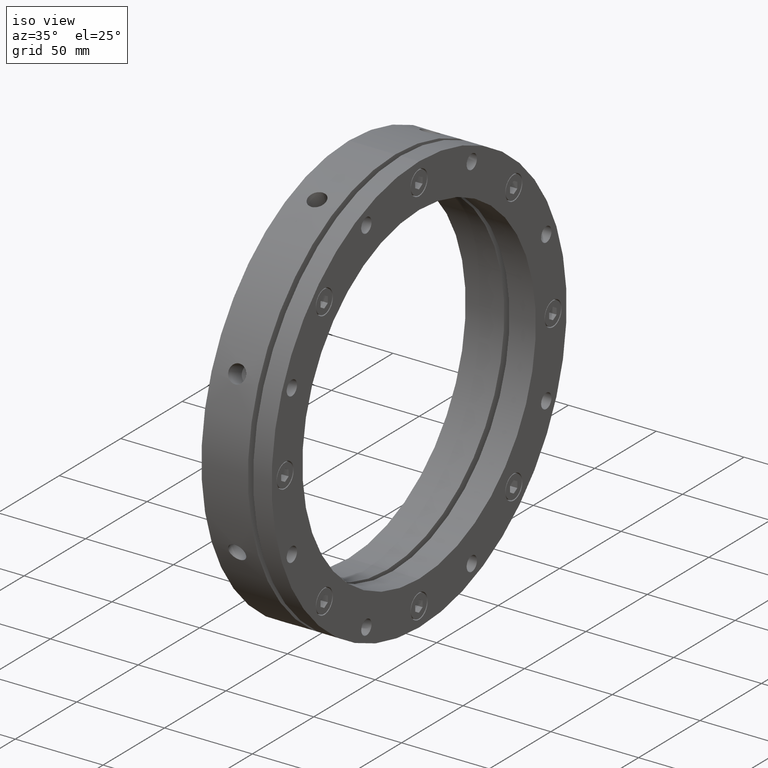
[diagram: clean part render]
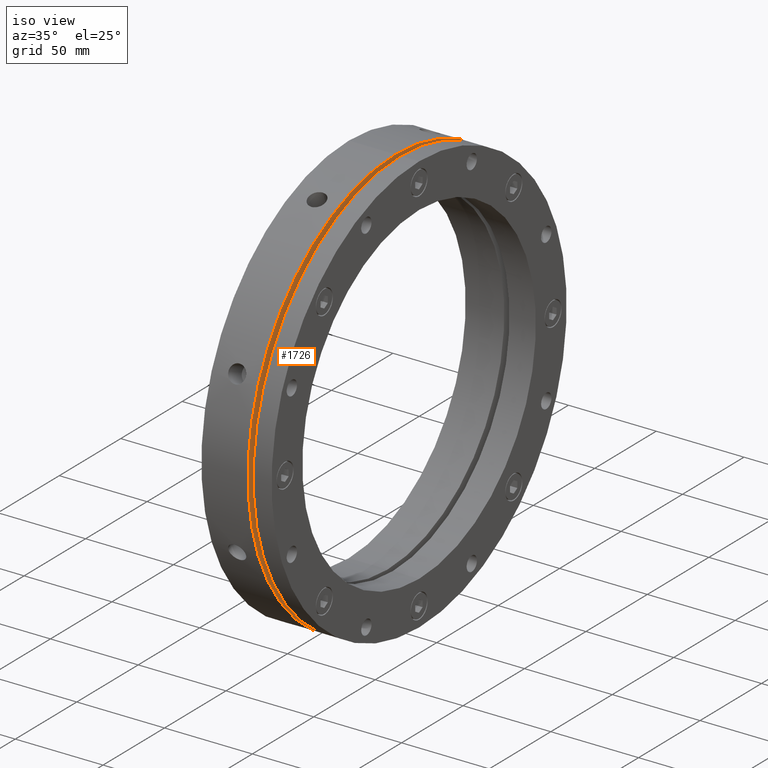
[diagram: same view with one face highlighted and labeled with its STEP entity id]
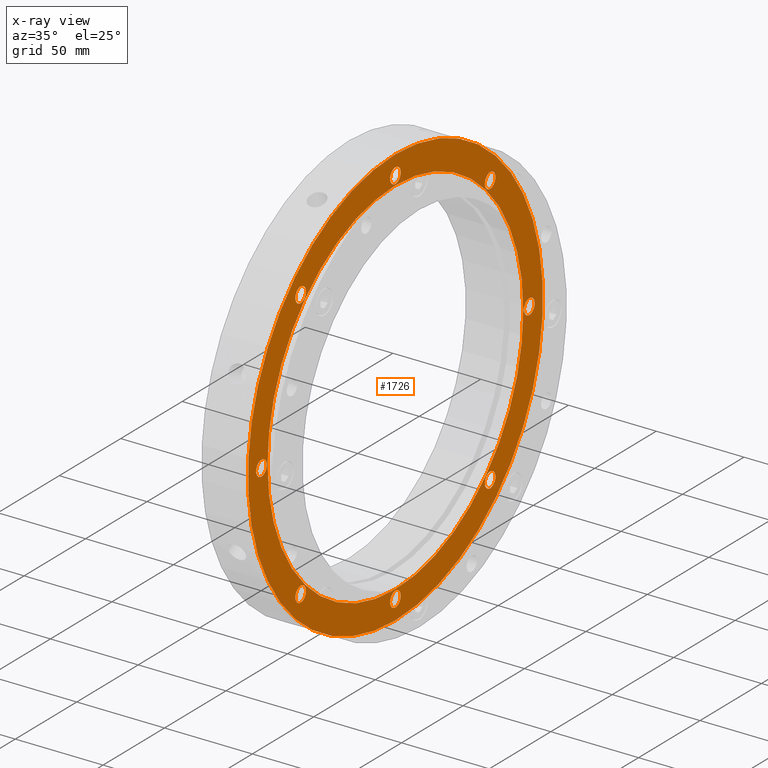
[diagram: x-ray of the same camera — body ghosted, the highlighted face saturated]
A machine part, iso view. The second image highlights one B-rep face of the part: STEP entity #1726.
The next image is the same camera in x-ray: the body ghosted, the highlighted face saturated — about 0% of this face is hidden behind the body in this view.
In plain terms, the highlighted planar face has unit normal (-1, 0, 0).
Its self-contained STEP definition (entity closure, byte-faithful):
#23 = EDGE_CURVE ( 'NONE', #2610, #2609, #2945, .T. ) ;
#24 = EDGE_CURVE ( 'NONE', #2606, #2605, #2947, .T. ) ;
#25 = EDGE_CURVE ( 'NONE', #2602, #2601, #2948, .T. ) ;
#26 = EDGE_CURVE ( 'NONE', #2598, #2597, #2949, .T. ) ;
#28 = EDGE_CURVE ( 'NONE', #2594, #2593, #2951, .T. ) ;
#29 = EDGE_CURVE ( 'NONE', #2590, #2589, #2952, .T. ) ;
#31 = EDGE_CURVE ( 'NONE', #2586, #2334, #2955, .T. ) ;
#32 = EDGE_CURVE ( 'NONE', #2331, #2330, #2956, .T. ) ;
#33 = EDGE_CURVE ( 'NONE', #2327, #2326, #2958, .T. ) ;
#66 = EDGE_CURVE ( 'NONE', #2593, #2594, #3003, .T. ) ;
#70 = EDGE_CURVE ( 'NONE', #2597, #2598, #3010, .T. ) ;
#74 = EDGE_CURVE ( 'NONE', #2601, #2602, #3016, .T. ) ;
#78 = EDGE_CURVE ( 'NONE', #2605, #2606, #3022, .T. ) ;
#82 = EDGE_CURVE ( 'NONE', #2609, #2610, #3028, .T. ) ;
#88 = EDGE_CURVE ( 'NONE', #2334, #2586, #3034, .T. ) ;
#89 = EDGE_CURVE ( 'NONE', #2330, #2331, #3040, .T. ) ;
#96 = EDGE_CURVE ( 'NONE', #2326, #2327, #3049, .T. ) ;
#121 = EDGE_CURVE ( 'NONE', #2244, #2249, #3078, .T. ) ;
#186 = EDGE_CURVE ( 'NONE', #2249, #2244, #3616, .T. ) ;
#631 = CARTESIAN_POINT ( 'NONE',  ( 26.49999999999996800, 77.07463914933370600, 77.07463914933367700 ) ) ;
#632 = DIRECTION ( 'NONE',  ( 1.000000000000000000, 0.0000000000000000000, 0.0000000000000000000 ) ) ;
#633 = DIRECTION ( 'NONE',  ( 0.0000000000000000000, 0.0000000000000000000, -1.000000000000000000 ) ) ;
#634 = CARTESIAN_POINT ( 'NONE',  ( 26.49999999999996800, 109.0000000000000000, -1.776356999999999900E-014 ) ) ;
#635 = DIRECTION ( 'NONE',  ( 1.000000000000000000, 0.0000000000000000000, 0.0000000000000000000 ) ) ;
#636 = DIRECTION ( 'NONE',  ( 0.0000000000000000000, 0.0000000000000000000, -1.000000000000000000 ) ) ;
#637 = CARTESIAN_POINT ( 'NONE',  ( 26.49999999999996800, 77.07463914933369200, -77.07463914933369200 ) ) ;
#638 = DIRECTION ( 'NONE',  ( 1.000000000000000000, 0.0000000000000000000, 0.0000000000000000000 ) ) ;
#639 = DIRECTION ( 'NONE',  ( 0.0000000000000000000, 0.0000000000000000000, -1.000000000000000000 ) ) ;
#641 = CARTESIAN_POINT ( 'NONE',  ( 26.49999999999996800, -1.776356999999999900E-014, -109.0000000000000000 ) ) ;
#642 = DIRECTION ( 'NONE',  ( 1.000000000000000000, 0.0000000000000000000, 0.0000000000000000000 ) ) ;
#643 = DIRECTION ( 'NONE',  ( 0.0000000000000000000, 0.0000000000000000000, -1.000000000000000000 ) ) ;
#645 = CARTESIAN_POINT ( 'NONE',  ( 26.49999999999996800, -77.07463914933369200, -77.07463914933369200 ) ) ;
#646 = DIRECTION ( 'NONE',  ( 1.000000000000000000, 0.0000000000000000000, 0.0000000000000000000 ) ) ;
#647 = DIRECTION ( 'NONE',  ( 0.0000000000000000000, 0.0000000000000000000, -1.000000000000000000 ) ) ;
#649 = CARTESIAN_POINT ( 'NONE',  ( 26.49999999999996800, -109.0000000000000000, 0.0000000000000000000 ) ) ;
#650 = DIRECTION ( 'NONE',  ( 1.000000000000000000, 0.0000000000000000000, 0.0000000000000000000 ) ) ;
#651 = DIRECTION ( 'NONE',  ( 0.0000000000000000000, 0.0000000000000000000, -1.000000000000000000 ) ) ;
#652 = CARTESIAN_POINT ( 'NONE',  ( 26.49999999999996800, -77.07463914933369200, 77.07463914933369200 ) ) ;
#653 = DIRECTION ( 'NONE',  ( 1.000000000000000000, 0.0000000000000000000, 0.0000000000000000000 ) ) ;
#654 = DIRECTION ( 'NONE',  ( 0.0000000000000000000, 0.0000000000000000000, -1.000000000000000000 ) ) ;
#655 = CARTESIAN_POINT ( 'NONE',  ( 26.49999999999996800, 0.0000000000000000000, 109.0000000000000000 ) ) ;
#656 = DIRECTION ( 'NONE',  ( 1.000000000000000000, 0.0000000000000000000, 0.0000000000000000000 ) ) ;
#657 = DIRECTION ( 'NONE',  ( 0.0000000000000000000, 0.0000000000000000000, -1.000000000000000000 ) ) ;
#659 = CARTESIAN_POINT ( 'NONE',  ( 26.49999999999996800, 0.0000000000000000000, 0.0000000000000000000 ) ) ;
#660 = DIRECTION ( 'NONE',  ( 1.000000000000000000, -0.0000000000000000000, -0.0000000000000000000 ) ) ;
#661 = DIRECTION ( 'NONE',  ( 0.0000000000000000000, 0.0000000000000000000, 1.000000000000000000 ) ) ;
#746 = CARTESIAN_POINT ( 'NONE',  ( 26.49999999999996800, -77.07463914933369200, -77.07463914933369200 ) ) ;
#747 = DIRECTION ( 'NONE',  ( 1.000000000000000000, 0.0000000000000000000, 0.0000000000000000000 ) ) ;
#748 = DIRECTION ( 'NONE',  ( 0.0000000000000000000, 0.0000000000000000000, -1.000000000000000000 ) ) ;
#756 = CARTESIAN_POINT ( 'NONE',  ( 26.49999999999996800, -1.776356999999999900E-014, -109.0000000000000000 ) ) ;
#757 = DIRECTION ( 'NONE',  ( 1.000000000000000000, 0.0000000000000000000, 0.0000000000000000000 ) ) ;
#758 = DIRECTION ( 'NONE',  ( 0.0000000000000000000, 0.0000000000000000000, -1.000000000000000000 ) ) ;
#766 = CARTESIAN_POINT ( 'NONE',  ( 26.49999999999996800, 77.07463914933369200, -77.07463914933369200 ) ) ;
#767 = DIRECTION ( 'NONE',  ( 1.000000000000000000, 0.0000000000000000000, 0.0000000000000000000 ) ) ;
#768 = DIRECTION ( 'NONE',  ( 0.0000000000000000000, 0.0000000000000000000, -1.000000000000000000 ) ) ;
#776 = CARTESIAN_POINT ( 'NONE',  ( 26.49999999999996800, 109.0000000000000000, -1.776356999999999900E-014 ) ) ;
#777 = DIRECTION ( 'NONE',  ( 1.000000000000000000, 0.0000000000000000000, 0.0000000000000000000 ) ) ;
#778 = DIRECTION ( 'NONE',  ( 0.0000000000000000000, 0.0000000000000000000, -1.000000000000000000 ) ) ;
#786 = CARTESIAN_POINT ( 'NONE',  ( 26.49999999999996800, 77.07463914933370600, 77.07463914933367700 ) ) ;
#787 = DIRECTION ( 'NONE',  ( 1.000000000000000000, 0.0000000000000000000, 0.0000000000000000000 ) ) ;
#788 = DIRECTION ( 'NONE',  ( 0.0000000000000000000, 0.0000000000000000000, -1.000000000000000000 ) ) ;
#799 = CARTESIAN_POINT ( 'NONE',  ( 26.49999999999996800, -77.07463914933369200, 77.07463914933369200 ) ) ;
#800 = DIRECTION ( 'NONE',  ( 1.000000000000000000, 0.0000000000000000000, 0.0000000000000000000 ) ) ;
#801 = DIRECTION ( 'NONE',  ( 0.0000000000000000000, 0.0000000000000000000, -1.000000000000000000 ) ) ;
#803 = CARTESIAN_POINT ( 'NONE',  ( 26.49999999999996800, 0.0000000000000000000, 109.0000000000000000 ) ) ;
#804 = DIRECTION ( 'NONE',  ( 1.000000000000000000, 0.0000000000000000000, 0.0000000000000000000 ) ) ;
#805 = DIRECTION ( 'NONE',  ( 0.0000000000000000000, 0.0000000000000000000, -1.000000000000000000 ) ) ;
#820 = CARTESIAN_POINT ( 'NONE',  ( 26.49999999999996800, 0.0000000000000000000, 0.0000000000000000000 ) ) ;
#821 = DIRECTION ( 'NONE',  ( 1.000000000000000000, -0.0000000000000000000, -0.0000000000000000000 ) ) ;
#822 = DIRECTION ( 'NONE',  ( 0.0000000000000000000, 0.0000000000000000000, 1.000000000000000000 ) ) ;
#1161 = CARTESIAN_POINT ( 'NONE',  ( 26.49999999999996800, 0.0000000000000000000, 0.0000000000000000000 ) ) ;
#1162 = DIRECTION ( 'NONE',  ( -1.000000000000000000, -0.0000000000000000000, -0.0000000000000000000 ) ) ;
#1163 = DIRECTION ( 'NONE',  ( 0.0000000000000000000, 0.0000000000000000000, -1.000000000000000000 ) ) ;
#1488 = CARTESIAN_POINT ( 'NONE',  ( 26.49999999999996800, 0.0000000000000000000, 0.0000000000000000000 ) ) ;
#1489 = DIRECTION ( 'NONE',  ( -1.000000000000000000, -0.0000000000000000000, -0.0000000000000000000 ) ) ;
#1490 = DIRECTION ( 'NONE',  ( 0.0000000000000000000, 0.0000000000000000000, -1.000000000000000000 ) ) ;
#1726 = ADVANCED_FACE ( 'NONE', ( #4015, #4023, #4019, #4017, #4021, #4024, #4025, #4026, #4027, #4028 ), #4774, .F. ) ;
#2193 = ORIENTED_EDGE ( 'NONE', *, *, #33, .F. ) ;
#2194 = ORIENTED_EDGE ( 'NONE', *, *, #96, .F. ) ;
#2195 = ORIENTED_EDGE ( 'NONE', *, *, #32, .F. ) ;
#2196 = ORIENTED_EDGE ( 'NONE', *, *, #89, .F. ) ;
#2197 = ORIENTED_EDGE ( 'NONE', *, *, #31, .F. ) ;
#2198 = ORIENTED_EDGE ( 'NONE', *, *, #88, .F. ) ;
#2199 = ORIENTED_EDGE ( 'NONE', *, *, #29, .F. ) ;
#2200 = ORIENTED_EDGE ( 'NONE', *, *, #3510, .F. ) ;
#2201 = ORIENTED_EDGE ( 'NONE', *, *, #28, .F. ) ;
#2202 = ORIENTED_EDGE ( 'NONE', *, *, #66, .F. ) ;
#2203 = ORIENTED_EDGE ( 'NONE', *, *, #26, .F. ) ;
#2204 = ORIENTED_EDGE ( 'NONE', *, *, #70, .F. ) ;
#2205 = ORIENTED_EDGE ( 'NONE', *, *, #25, .F. ) ;
#2206 = ORIENTED_EDGE ( 'NONE', *, *, #74, .F. ) ;
#2207 = ORIENTED_EDGE ( 'NONE', *, *, #24, .F. ) ;
#2208 = ORIENTED_EDGE ( 'NONE', *, *, #78, .F. ) ;
#2209 = ORIENTED_EDGE ( 'NONE', *, *, #23, .F. ) ;
#2210 = ORIENTED_EDGE ( 'NONE', *, *, #82, .F. ) ;
#2211 = ORIENTED_EDGE ( 'NONE', *, *, #186, .F. ) ;
#2212 = ORIENTED_EDGE ( 'NONE', *, *, #121, .F. ) ;
#2244 = VERTEX_POINT ( 'NONE', #4867 ) ;
#2249 = VERTEX_POINT ( 'NONE', #4871 ) ;
#2326 = VERTEX_POINT ( 'NONE', #4946 ) ;
#2327 = VERTEX_POINT ( 'NONE', #4947 ) ;
#2330 = VERTEX_POINT ( 'NONE', #4950 ) ;
#2331 = VERTEX_POINT ( 'NONE', #4951 ) ;
#2334 = VERTEX_POINT ( 'NONE', #4954 ) ;
#2406 = AXIS2_PLACEMENT_3D ( 'NONE', #4776, #4772, #4778 ) ;
#2492 = AXIS2_PLACEMENT_3D ( 'NONE', #5372, #5373, #5374 ) ;
#2586 = VERTEX_POINT ( 'NONE', #4957 ) ;
#2589 = VERTEX_POINT ( 'NONE', #4960 ) ;
#2590 = VERTEX_POINT ( 'NONE', #4961 ) ;
#2593 = VERTEX_POINT ( 'NONE', #4956 ) ;
#2594 = VERTEX_POINT ( 'NONE', #4963 ) ;
#2597 = VERTEX_POINT ( 'NONE', #4966 ) ;
#2598 = VERTEX_POINT ( 'NONE', #4967 ) ;
#2601 = VERTEX_POINT ( 'NONE', #4970 ) ;
#2602 = VERTEX_POINT ( 'NONE', #4971 ) ;
#2605 = VERTEX_POINT ( 'NONE', #4974 ) ;
#2606 = VERTEX_POINT ( 'NONE', #4975 ) ;
#2609 = VERTEX_POINT ( 'NONE', #4978 ) ;
#2610 = VERTEX_POINT ( 'NONE', #4979 ) ;
#2753 = EDGE_LOOP ( 'NONE', ( #2195, #2196 ) ) ;
#2757 = EDGE_LOOP ( 'NONE', ( #2193, #2194 ) ) ;
#2773 = EDGE_LOOP ( 'NONE', ( #2199, #2200 ) ) ;
#2774 = EDGE_LOOP ( 'NONE', ( #2197, #2198 ) ) ;
#2783 = EDGE_LOOP ( 'NONE', ( #2201, #2202 ) ) ;
#2784 = EDGE_LOOP ( 'NONE', ( #2203, #2204 ) ) ;
#2785 = EDGE_LOOP ( 'NONE', ( #2205, #2206 ) ) ;
#2786 = EDGE_LOOP ( 'NONE', ( #2207, #2208 ) ) ;
#2787 = EDGE_LOOP ( 'NONE', ( #2209, #2210 ) ) ;
#2788 = EDGE_LOOP ( 'NONE', ( #2211, #2212 ) ) ;
#2945 = CIRCLE ( 'NONE', #3420, 4.299999999999998000 ) ;
#2947 = CIRCLE ( 'NONE', #3421, 4.299999999999999800 ) ;
#2948 = CIRCLE ( 'NONE', #3422, 4.299999999999998000 ) ;
#2949 = CIRCLE ( 'NONE', #3423, 4.299999999999998000 ) ;
#2951 = CIRCLE ( 'NONE', #3424, 4.299999999999998000 ) ;
#2952 = CIRCLE ( 'NONE', #3425, 4.299999999999999800 ) ;
#2955 = CIRCLE ( 'NONE', #3426, 4.299999999999998000 ) ;
#2956 = CIRCLE ( 'NONE', #3427, 4.299999999999998000 ) ;
#2958 = CIRCLE ( 'NONE', #3428, 104.0000000000000100 ) ;
#3003 = CIRCLE ( 'NONE', #3447, 4.299999999999998000 ) ;
#3010 = CIRCLE ( 'NONE', #3449, 4.299999999999998000 ) ;
#3016 = CIRCLE ( 'NONE', #3451, 4.299999999999998000 ) ;
#3022 = CIRCLE ( 'NONE', #3281, 4.299999999999999800 ) ;
#3028 = CIRCLE ( 'NONE', #3363, 4.299999999999998000 ) ;
#3034 = CIRCLE ( 'NONE', #3360, 4.299999999999998000 ) ;
#3040 = CIRCLE ( 'NONE', #3359, 4.299999999999998000 ) ;
#3049 = CIRCLE ( 'NONE', #3356, 104.0000000000000100 ) ;
#3078 = CIRCLE ( 'NONE', #3353, 120.0000000000000000 ) ;
#3281 = AXIS2_PLACEMENT_3D ( 'NONE', #776, #777, #778 ) ;
#3331 = AXIS2_PLACEMENT_3D ( 'NONE', #1488, #1489, #1490 ) ;
#3353 = AXIS2_PLACEMENT_3D ( 'NONE', #1161, #1162, #1163 ) ;
#3356 = AXIS2_PLACEMENT_3D ( 'NONE', #820, #821, #822 ) ;
#3359 = AXIS2_PLACEMENT_3D ( 'NONE', #803, #804, #805 ) ;
#3360 = AXIS2_PLACEMENT_3D ( 'NONE', #799, #800, #801 ) ;
#3363 = AXIS2_PLACEMENT_3D ( 'NONE', #786, #787, #788 ) ;
#3420 = AXIS2_PLACEMENT_3D ( 'NONE', #631, #632, #633 ) ;
#3421 = AXIS2_PLACEMENT_3D ( 'NONE', #634, #635, #636 ) ;
#3422 = AXIS2_PLACEMENT_3D ( 'NONE', #637, #638, #639 ) ;
#3423 = AXIS2_PLACEMENT_3D ( 'NONE', #641, #642, #643 ) ;
#3424 = AXIS2_PLACEMENT_3D ( 'NONE', #645, #646, #647 ) ;
#3425 = AXIS2_PLACEMENT_3D ( 'NONE', #649, #650, #651 ) ;
#3426 = AXIS2_PLACEMENT_3D ( 'NONE', #652, #653, #654 ) ;
#3427 = AXIS2_PLACEMENT_3D ( 'NONE', #655, #656, #657 ) ;
#3428 = AXIS2_PLACEMENT_3D ( 'NONE', #659, #660, #661 ) ;
#3447 = AXIS2_PLACEMENT_3D ( 'NONE', #746, #747, #748 ) ;
#3449 = AXIS2_PLACEMENT_3D ( 'NONE', #756, #757, #758 ) ;
#3451 = AXIS2_PLACEMENT_3D ( 'NONE', #766, #767, #768 ) ;
#3510 = EDGE_CURVE ( 'NONE', #2589, #2590, #5731, .T. ) ;
#3616 = CIRCLE ( 'NONE', #3331, 120.0000000000000000 ) ;
#4015 = FACE_BOUND ( 'NONE', #2757, .T. ) ;
#4017 = FACE_BOUND ( 'NONE', #2773, .T. ) ;
#4019 = FACE_BOUND ( 'NONE', #2774, .T. ) ;
#4021 = FACE_BOUND ( 'NONE', #2783, .T. ) ;
#4023 = FACE_BOUND ( 'NONE', #2753, .T. ) ;
#4024 = FACE_BOUND ( 'NONE', #2784, .T. ) ;
#4025 = FACE_BOUND ( 'NONE', #2785, .T. ) ;
#4026 = FACE_BOUND ( 'NONE', #2786, .T. ) ;
#4027 = FACE_BOUND ( 'NONE', #2787, .T. ) ;
#4028 = FACE_OUTER_BOUND ( 'NONE', #2788, .T. ) ;
#4772 = DIRECTION ( 'NONE',  ( -1.000000000000000000, 0.0000000000000000000, 0.0000000000000000000 ) ) ;
#4774 = PLANE ( 'NONE',  #2406 ) ;
#4776 = CARTESIAN_POINT ( 'NONE',  ( 26.49999999999996800, 112.0000000000000000, 0.0000000000000000000 ) ) ;
#4778 = DIRECTION ( 'NONE',  ( 0.0000000000000000000, 0.0000000000000000000, 1.000000000000000000 ) ) ;
#4867 = CARTESIAN_POINT ( 'NONE',  ( 26.49999999999996800, 1.469576158976823700E-014, 120.0000000000000000 ) ) ;
#4871 = CARTESIAN_POINT ( 'NONE',  ( 26.49999999999996800, 0.0000000000000000000, -120.0000000000000000 ) ) ;
#4946 = CARTESIAN_POINT ( 'NONE',  ( 26.49999999999996800, 1.273632671113247400E-014, -104.0000000000000100 ) ) ;
#4947 = CARTESIAN_POINT ( 'NONE',  ( 26.49999999999996800, 0.0000000000000000000, 104.0000000000000100 ) ) ;
#4950 = CARTESIAN_POINT ( 'NONE',  ( 26.49999999999996800, 5.265981236333620400E-016, 113.3000000000000000 ) ) ;
#4951 = CARTESIAN_POINT ( 'NONE',  ( 26.49999999999996800, 0.0000000000000000000, 104.7000000000000000 ) ) ;
#4954 = CARTESIAN_POINT ( 'NONE',  ( 26.49999999999996800, -77.07463914933369200, 81.37463914933370300 ) ) ;
#4956 = CARTESIAN_POINT ( 'NONE',  ( 26.49999999999996800, -77.07463914933369200, -72.77463914933368000 ) ) ;
#4957 = CARTESIAN_POINT ( 'NONE',  ( 26.49999999999996800, -77.07463914933369200, 72.77463914933369400 ) ) ;
#4960 = CARTESIAN_POINT ( 'NONE',  ( 26.49999999999996800, -109.0000000000000000, 4.299999999999999800 ) ) ;
#4961 = CARTESIAN_POINT ( 'NONE',  ( 26.49999999999996800, -109.0000000000000000, -4.299999999999999800 ) ) ;
#4963 = CARTESIAN_POINT ( 'NONE',  ( 26.49999999999996800, -77.07463914933369200, -81.37463914933368900 ) ) ;
#4966 = CARTESIAN_POINT ( 'NONE',  ( 26.49999999999996800, -1.723697187636663600E-014, -104.7000000000000000 ) ) ;
#4967 = CARTESIAN_POINT ( 'NONE',  ( 26.49999999999996800, -1.776356999999999900E-014, -113.3000000000000000 ) ) ;
#4970 = CARTESIAN_POINT ( 'NONE',  ( 26.49999999999996800, 77.07463914933369200, -72.77463914933369400 ) ) ;
#4971 = CARTESIAN_POINT ( 'NONE',  ( 26.49999999999996800, 77.07463914933369200, -81.37463914933370300 ) ) ;
#4974 = CARTESIAN_POINT ( 'NONE',  ( 26.49999999999996800, 109.0000000000000000, 4.299999999999982900 ) ) ;
#4975 = CARTESIAN_POINT ( 'NONE',  ( 26.49999999999996800, 109.0000000000000000, -4.300000000000017600 ) ) ;
#4978 = CARTESIAN_POINT ( 'NONE',  ( 26.49999999999996800, 77.07463914933370600, 81.37463914933367400 ) ) ;
#4979 = CARTESIAN_POINT ( 'NONE',  ( 26.49999999999996800, 77.07463914933370600, 72.77463914933366600 ) ) ;
#5372 = CARTESIAN_POINT ( 'NONE',  ( 26.49999999999996800, -109.0000000000000000, 0.0000000000000000000 ) ) ;
#5373 = DIRECTION ( 'NONE',  ( 1.000000000000000000, 0.0000000000000000000, 0.0000000000000000000 ) ) ;
#5374 = DIRECTION ( 'NONE',  ( 0.0000000000000000000, 0.0000000000000000000, -1.000000000000000000 ) ) ;
#5731 = CIRCLE ( 'NONE', #2492, 4.299999999999999800 ) ;